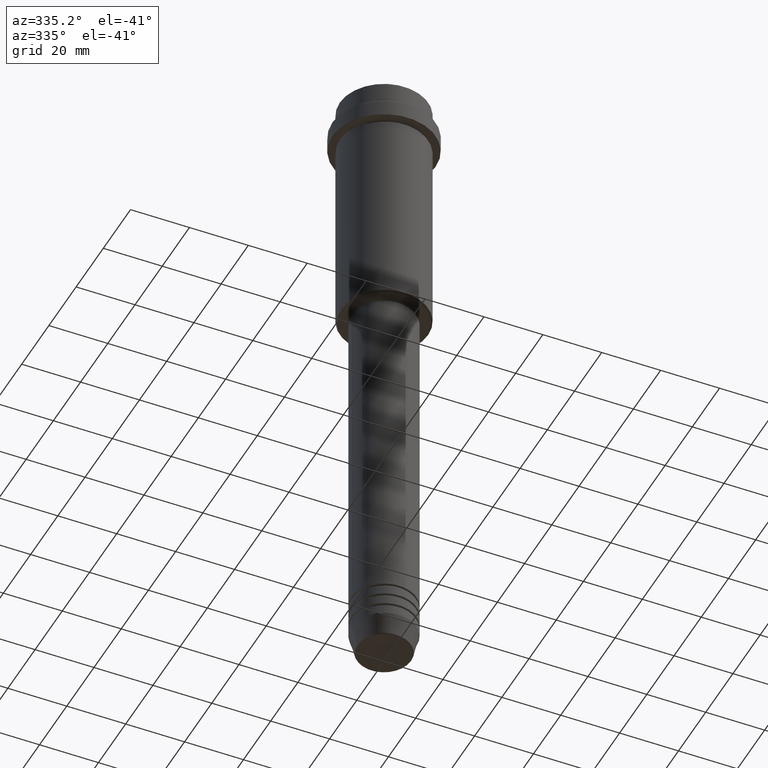
[diagram: clean part render]
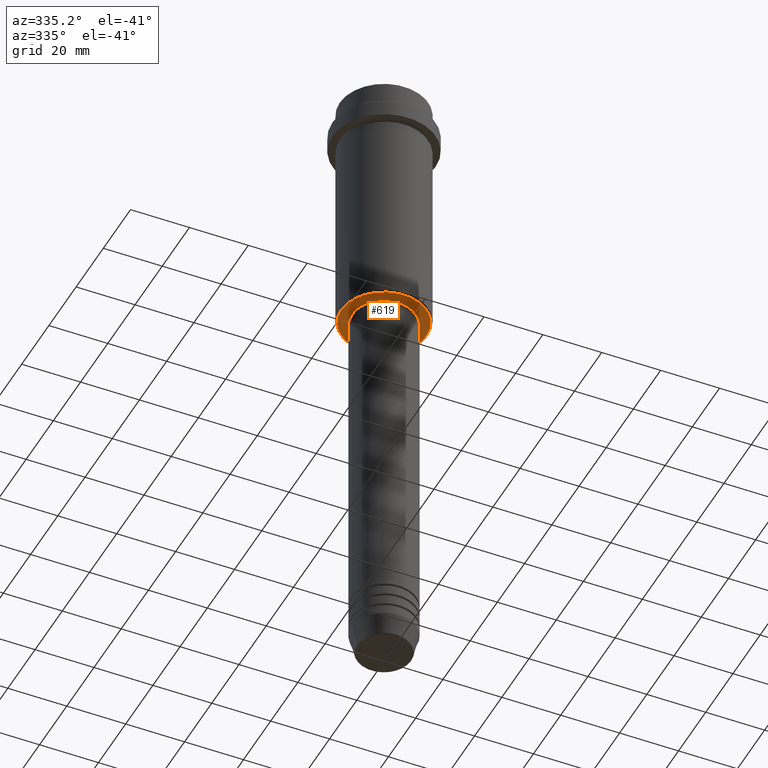
[diagram: same view with one face highlighted and labeled with its STEP entity id]
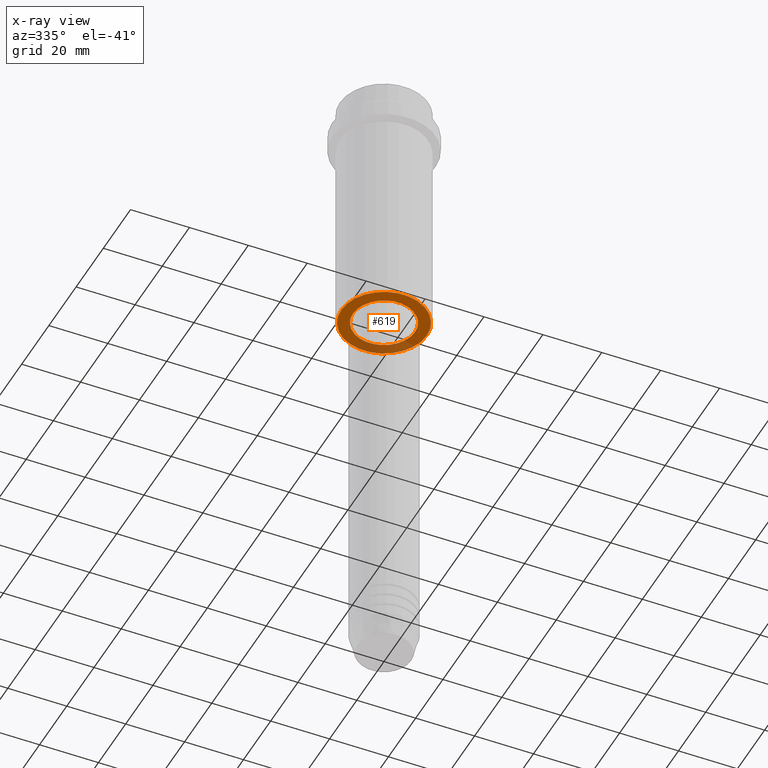
[diagram: x-ray of the same camera — body ghosted, the highlighted face saturated]
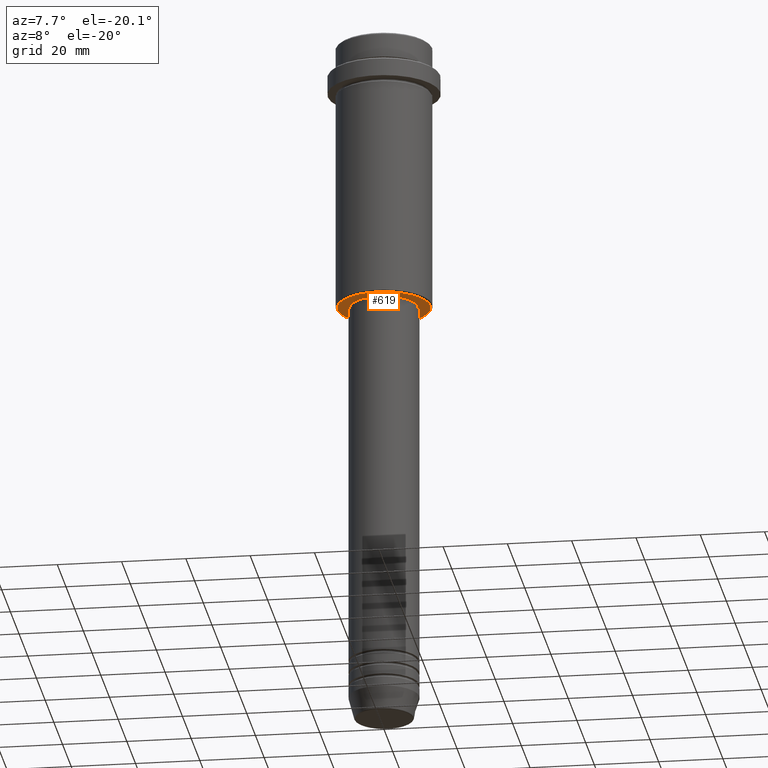
[diagram: same view with one face highlighted and labeled with its STEP entity id]
A machine part, auxiliary view. The second image highlights one B-rep face of the part: STEP entity #619.
The next image is the same camera in x-ray: the body ghosted, the highlighted face saturated — about 21% of this face is hidden behind the body in this view.
A second angle (auxiliary view) of the same face is appended — the face is thin or edge-on in the first view.
In plain terms, the highlighted planar face has unit normal (0, 0, -1).
Its self-contained STEP definition (entity closure, byte-faithful):
#1 = CARTESIAN_POINT ( 'NONE',  ( -10.49999999999999289, 1.285879139104720042E-15, -85.00000000000001421 ) ) ;
#3 = ORIENTED_EDGE ( 'NONE', *, *, #508, .T. ) ;
#21 = DIRECTION ( 'NONE',  ( 0.000000000000000000, 0.000000000000000000, -1.000000000000000000 ) ) ;
#47 = EDGE_LOOP ( 'NONE', ( #1253, #900 ) ) ;
#72 = AXIS2_PLACEMENT_3D ( 'NONE', #124, #21, #93 ) ;
#73 = AXIS2_PLACEMENT_3D ( 'NONE', #538, #1395, #842 ) ;
#93 = DIRECTION ( 'NONE',  ( -1.000000000000000000, 0.000000000000000000, 0.000000000000000000 ) ) ;
#124 = CARTESIAN_POINT ( 'NONE',  ( 0.000000000000000000, 0.000000000000000000, -85.00000000000001421 ) ) ;
#209 = DIRECTION ( 'NONE',  ( -0.000000000000000000, -0.000000000000000000, 1.000000000000000000 ) ) ;
#225 = AXIS2_PLACEMENT_3D ( 'NONE', #346, #209, #647 ) ;
#237 = DIRECTION ( 'NONE',  ( 0.000000000000000000, 0.000000000000000000, -1.000000000000000000 ) ) ;
#266 = CARTESIAN_POINT ( 'NONE',  ( 14.50000000000001066, 0.000000000000000000, -85.00000000000001421 ) ) ;
#297 = EDGE_CURVE ( 'NONE', #602, #966, #1060, .T. ) ;
#309 = CIRCLE ( 'NONE', #73, 10.49999999999999289 ) ;
#325 = AXIS2_PLACEMENT_3D ( 'NONE', #947, #1369, #526 ) ;
#344 = CARTESIAN_POINT ( 'NONE',  ( 0.000000000000000000, 15.00000000000000000, -85.00000000000001421 ) ) ;
#346 = CARTESIAN_POINT ( 'NONE',  ( 0.000000000000000000, 0.000000000000000000, -85.00000000000001421 ) ) ;
#390 = CIRCLE ( 'NONE', #225, 10.49999999999999289 ) ;
#508 = EDGE_CURVE ( 'NONE', #1006, #537, #390, .T. ) ;
#526 = DIRECTION ( 'NONE',  ( -1.000000000000000000, 0.000000000000000000, 0.000000000000000000 ) ) ;
#537 = VERTEX_POINT ( 'NONE', #1287 ) ;
#538 = CARTESIAN_POINT ( 'NONE',  ( 0.000000000000000000, 0.000000000000000000, -85.00000000000001421 ) ) ;
#576 = FACE_BOUND ( 'NONE', #708, .T. ) ;
#602 = VERTEX_POINT ( 'NONE', #266 ) ;
#619 = ADVANCED_FACE ( 'NONE', ( #1091, #576 ), #768, .T. ) ;
#647 = DIRECTION ( 'NONE',  ( 1.000000000000000000, 0.000000000000000000, 0.000000000000000000 ) ) ;
#708 = EDGE_LOOP ( 'NONE', ( #812, #3 ) ) ;
#760 = EDGE_CURVE ( 'NONE', #966, #602, #1203, .T. ) ;
#768 = PLANE ( 'NONE',  #1162 ) ;
#812 = ORIENTED_EDGE ( 'NONE', *, *, #1324, .T. ) ;
#842 = DIRECTION ( 'NONE',  ( 1.000000000000000000, 0.000000000000000000, 0.000000000000000000 ) ) ;
#900 = ORIENTED_EDGE ( 'NONE', *, *, #760, .T. ) ;
#947 = CARTESIAN_POINT ( 'NONE',  ( 0.000000000000000000, 0.000000000000000000, -85.00000000000001421 ) ) ;
#966 = VERTEX_POINT ( 'NONE', #1102 ) ;
#999 = DIRECTION ( 'NONE',  ( -1.000000000000000000, 0.000000000000000000, -0.000000000000000000 ) ) ;
#1006 = VERTEX_POINT ( 'NONE', #1 ) ;
#1060 = CIRCLE ( 'NONE', #325, 14.50000000000001066 ) ;
#1091 = FACE_OUTER_BOUND ( 'NONE', #47, .T. ) ;
#1102 = CARTESIAN_POINT ( 'NONE',  ( -14.50000000000001066, 1.806354028742346591E-15, -85.00000000000001421 ) ) ;
#1162 = AXIS2_PLACEMENT_3D ( 'NONE', #344, #237, #999 ) ;
#1203 = CIRCLE ( 'NONE', #72, 14.50000000000001066 ) ;
#1253 = ORIENTED_EDGE ( 'NONE', *, *, #297, .T. ) ;
#1287 = CARTESIAN_POINT ( 'NONE',  ( 10.49999999999999289, 0.000000000000000000, -85.00000000000001421 ) ) ;
#1324 = EDGE_CURVE ( 'NONE', #537, #1006, #309, .T. ) ;
#1369 = DIRECTION ( 'NONE',  ( 0.000000000000000000, 0.000000000000000000, -1.000000000000000000 ) ) ;
#1395 = DIRECTION ( 'NONE',  ( -0.000000000000000000, -0.000000000000000000, 1.000000000000000000 ) ) ;